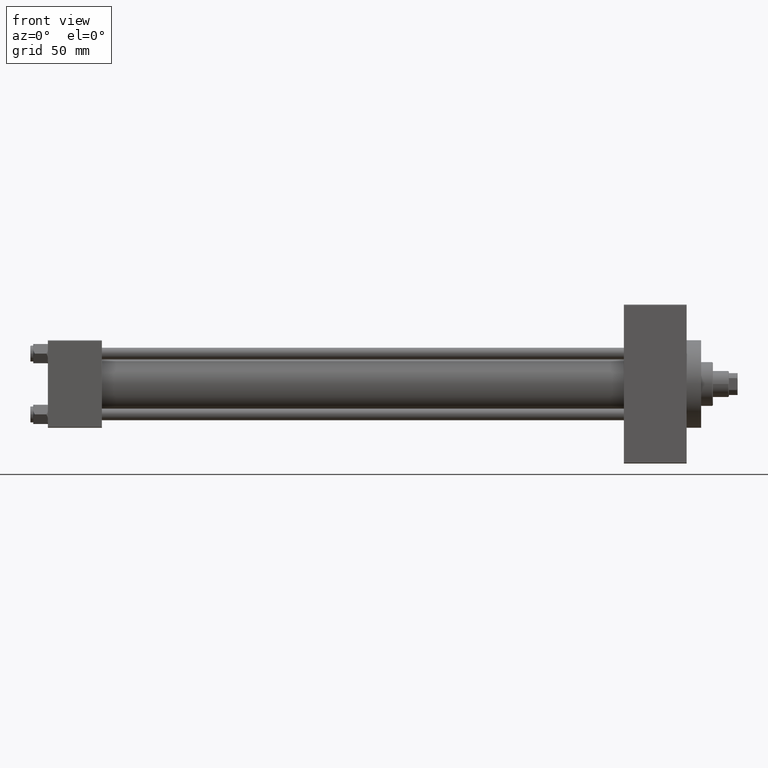
[diagram: clean part render]
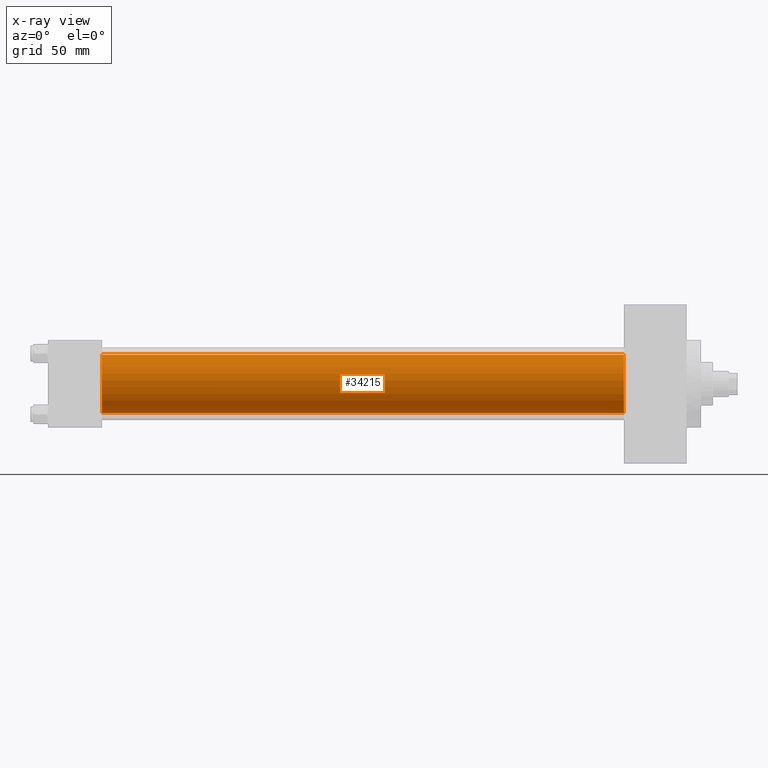
[diagram: x-ray — body ghosted, one internal face saturated and labeled with its STEP entity id]
A machine part, front view, then the same camera in x-ray: the body is ghosted and one INTERNAL B-rep face — a face not visible from any outside direction — is saturated and labeled: STEP entity #34215.
In plain terms, the highlighted cylindrical surface (edge-blend (fillet) strip) has radius 20 mm, axis along (-1, -0, -0).
Its self-contained STEP definition (entity closure, byte-faithful):
#1460 = DIRECTION ( 'NONE',  ( 1.000000000000000000, 0.000000000000000000, 0.000000000000000000 ) ) ;
#1890 = ORIENTED_EDGE ( 'NONE', *, *, #3518, .T. ) ;
#3029 = DIRECTION ( 'NONE',  ( 1.000000000000000000, 0.000000000000000000, 0.000000000000000000 ) ) ;
#3518 = EDGE_CURVE ( 'NONE', #19672, #34822, #37709, .T. ) ;
#4360 = ORIENTED_EDGE ( 'NONE', *, *, #32684, .F. ) ;
#8191 = DIRECTION ( 'NONE',  ( 0.000000000000000000, 0.000000000000000000, -1.000000000000000000 ) ) ;
#8433 = VECTOR ( 'NONE', #48559, 1000.000000000000000 ) ;
#10501 = CARTESIAN_POINT ( 'NONE',  ( 37.00000000000000000, -2.602085213965210642E-15, 0.000000000000000000 ) ) ;
#10878 = LINE ( 'NONE', #18130, #8433 ) ;
#11934 = CARTESIAN_POINT ( 'NONE',  ( 394.9999999999999432, -2.602085213965210642E-15, 0.000000000000000000 ) ) ;
#12436 = EDGE_CURVE ( 'NONE', #34822, #22998, #10878, .T. ) ;
#13268 = DIRECTION ( 'NONE',  ( 0.000000000000000000, 0.000000000000000000, 1.000000000000000000 ) ) ;
#15041 = CIRCLE ( 'NONE', #27771, 20.00000000000000000 ) ;
#15634 = EDGE_LOOP ( 'NONE', ( #1890, #22735, #22561, #4360 ) ) ;
#18130 = CARTESIAN_POINT ( 'NONE',  ( 394.9999999999999432, -1.527916156705046464E-16, -20.00000000000000000 ) ) ;
#19672 = VERTEX_POINT ( 'NONE', #47432 ) ;
#20492 = EDGE_CURVE ( 'NONE', #40986, #22998, #15041, .T. ) ;
#22561 = ORIENTED_EDGE ( 'NONE', *, *, #20492, .F. ) ;
#22735 = ORIENTED_EDGE ( 'NONE', *, *, #12436, .T. ) ;
#22998 = VERTEX_POINT ( 'NONE', #23532 ) ;
#23532 = CARTESIAN_POINT ( 'NONE',  ( 37.00000000000000000, -1.527916156705046464E-16, -20.00000000000000000 ) ) ;
#24732 = DIRECTION ( 'NONE',  ( -1.000000000000000000, -0.000000000000000000, -0.000000000000000000 ) ) ;
#25740 = CARTESIAN_POINT ( 'NONE',  ( 394.9999999999999432, -2.602085213965210642E-15, 20.00000000000000000 ) ) ;
#26654 = DIRECTION ( 'NONE',  ( 0.000000000000000000, 0.000000000000000000, -1.000000000000000000 ) ) ;
#27313 = AXIS2_PLACEMENT_3D ( 'NONE', #11934, #1460, #8191 ) ;
#27771 = AXIS2_PLACEMENT_3D ( 'NONE', #10501, #3029, #26654 ) ;
#27965 = CARTESIAN_POINT ( 'NONE',  ( 394.9999999999999432, -2.602085213965210642E-15, 0.000000000000000000 ) ) ;
#28172 = VECTOR ( 'NONE', #33470, 1000.000000000000000 ) ;
#29492 = LINE ( 'NONE', #25740, #28172 ) ;
#30217 = CARTESIAN_POINT ( 'NONE',  ( 37.00000000000000000, -2.602085213965210642E-15, 20.00000000000000000 ) ) ;
#32684 = EDGE_CURVE ( 'NONE', #19672, #40986, #29492, .T. ) ;
#33470 = DIRECTION ( 'NONE',  ( -1.000000000000000000, -0.000000000000000000, -0.000000000000000000 ) ) ;
#34215 = ADVANCED_FACE ( 'NONE', ( #47453 ), #40212, .F. ) ;
#34822 = VERTEX_POINT ( 'NONE', #43843 ) ;
#36993 = AXIS2_PLACEMENT_3D ( 'NONE', #27965, #24732, #13268 ) ;
#37709 = CIRCLE ( 'NONE', #27313, 20.00000000000000000 ) ;
#40212 = CYLINDRICAL_SURFACE ( 'NONE', #36993, 20.00000000000000000 ) ;
#40986 = VERTEX_POINT ( 'NONE', #30217 ) ;
#43843 = CARTESIAN_POINT ( 'NONE',  ( 394.9999999999999432, -1.527916156705046464E-16, -20.00000000000000000 ) ) ;
#47432 = CARTESIAN_POINT ( 'NONE',  ( 394.9999999999999432, -2.602085213965210642E-15, 20.00000000000000000 ) ) ;
#47453 = FACE_OUTER_BOUND ( 'NONE', #15634, .T. ) ;
#48559 = DIRECTION ( 'NONE',  ( -1.000000000000000000, -0.000000000000000000, -0.000000000000000000 ) ) ;